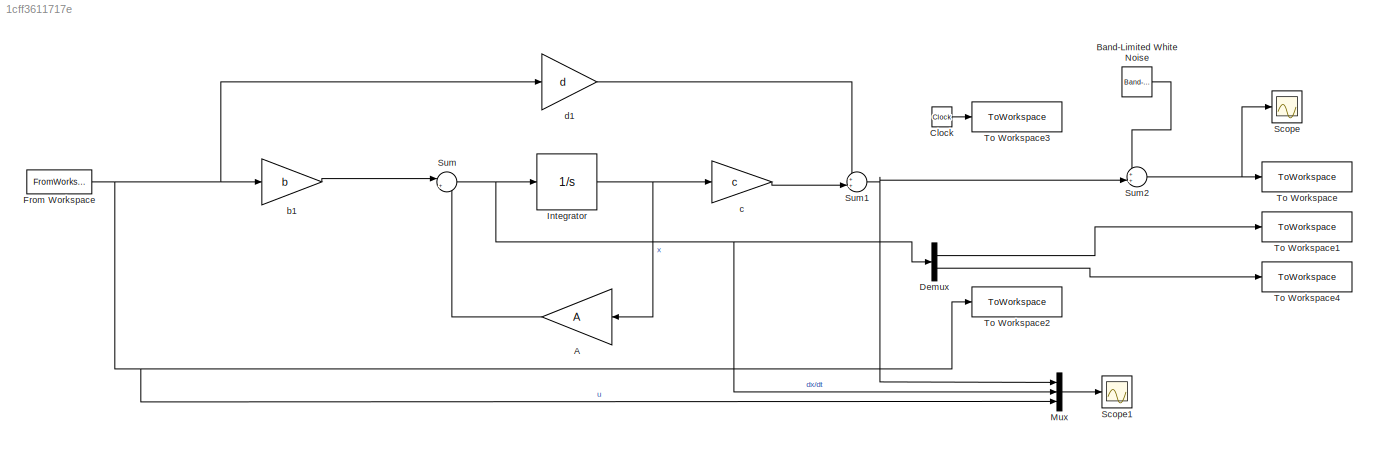
MODEL slx_1cff3611717e
KIND model
CONFIG AbsTol = auto
CONFIG EnableMultiTasking = off
CONFIG FixedStep = 0.0001
CONFIG MaxStep = auto
CONFIG MinStep = auto
CONFIG RelTol = 1e-3
CONFIG SampleTimeConstraint = Unconstrained
CONFIG SolverName = ode4
CONFIG StartTime = 0.0
CONFIG StopTime = 1
BLOCK [Gain] A
  Gain = A
  Multiplication = Matrix(K*u) (u vector)
  NameLocation = top
BLOCK [Reference] Band-Limited White Noise  REF=simulink/Sources/Band-Limited
White Noise
  SourceBlock = simulink/Sources/Band-Limited\nWhite Noise
  SourceType = Band-Limited White Noise.
BLOCK [Clock] Clock
BLOCK [Demux] Demux
  Outputs = 2
BLOCK [FromWorkspace] From Workspace
  NameLocation = top
  VariableName = [t_chirp, chirp_signal]
BLOCK [Integrator] Integrator
  InitialCondition = x0
BLOCK [Mux] Mux
  DisplayOption = bar
  Inputs = 3
BLOCK [Scope] Scope
  ActiveDisplayYMaximum = 0.24899146493402396
  ActiveDisplayYMinimum = -0.001409054570019992
  Floating = off
  GraphicalSettings = {"Style":{"BackgroundColor":[0.12941176470588237,0.12941176470588237,0.12941176470588237],"AxesColor":[0.07058823529411765,0.07058823529411765,0.07058823529411765],"LabelsColor":[0.8509803921568627,0.8509803921568627,0.8509803921568627],"PreserveColors":false,"Visible":[true],"LineStyle":["-"],"LineWidth":[1.5],"BarWidth":[0.9],"LineColor":["auto"],"LineFaceAlpha":[1],"LineEdgeAlpha":[1],"Marker":...<+1999ch>
  MultipleDisplayCache = [{"MaxYLimMag":0.17442001368157134,"MaxYLimReal":0.24899146493402396,"MinYLimMag":0,"MinYLimReal":-0.001409054570019992,"PlotAsMagnitudePhase":false,"ShowGrid":true,"ShowLegend":false,"Title":"%<SignalLabel>","YLabel":""}]
  NumInputPorts = 1
  ScopeFrameLocation = window
  WasSavedAsWebScope = on
  WindowPosition = [1.000000,49.000000,1920.000000,1009.000000,]
BLOCK [Scope] Scope1
  ActiveDisplayYMaximum = 5.5321271901786586
  ActiveDisplayYMinimum = -7.3412624573538627
  DataLoggingVariableName = ScopeData1
  Floating = off
  GraphicalSettings = {"AxesScalingProperties":{"AlignXAxis":"Center","AlignYAxis":"Center","AutoScaleXAxisLimits":false,"AxesScaling":"Manual","AxesScalingNumUpdates":10,"ExpandOnly":true,"ScaleAxesLimitsAtStop":false,"XAxisDataRange":100,"YAxisDataRange":80},"DisplayProperties":{"ColorOrder":["auto","auto","auto","auto","auto","auto","auto","auto","auto","auto","auto","auto","auto","auto","auto","auto","auto","auto",...<+2220ch>
  MultipleDisplayCache = [{"MaxYLimMag":5.0779738759873121,"MaxYLimReal":5.5321271901786586,"MinYLimMag":0,"MinYLimReal":-7.3412624573538627,"PlotAsMagnitudePhase":false,"ShowGrid":true,"ShowLegend":false,"Title":"%<SignalLabel>","YLabel":""}]
  NumInputPorts = 1
  ScopeFrameLocation = window
  WasSavedAsWebScope = on
  WindowPosition = [680.000000,330.000000,560.000000,420.000000,]
BLOCK [Sum] Sum
  Inputs = |++
BLOCK [Sum] Sum1
  Inputs = ++|
BLOCK [Sum] Sum2
  Inputs = ++|
BLOCK [ToWorkspace] To Workspace
  FixptAsFi = on
  MaxDataPoints = inf
  SampleTime = Ts
  VariableName = x
BLOCK [ToWorkspace] To Workspace1
  FixptAsFi = on
  MaxDataPoints = inf
  SampleTime = Ts
  VariableName = dx
BLOCK [ToWorkspace] To Workspace2
  FixptAsFi = on
  MaxDataPoints = inf
  SampleTime = Ts
  VariableName = i
BLOCK [ToWorkspace] To Workspace3
  FixptAsFi = on
  MaxDataPoints = inf
  SampleTime = Ts
  VariableName = t
BLOCK [ToWorkspace] To Workspace4
  FixptAsFi = on
  MaxDataPoints = inf
  SampleTime = Ts
  VariableName = ddx
BLOCK [Gain] b1
  Gain = b
  Multiplication = Matrix(K*u) (u vector)
BLOCK [Gain] c
  Gain = c
  Multiplication = Matrix(K*u) (u vector)
BLOCK [Gain] d1
  Gain = d
  Multiplication = Matrix(K*u) (u vector)
LINE A:1 -> Sum:2
LINE Band-Limited White Noise:1 -> Sum2:1
LINE Clock:1 -> To Workspace3:1
LINE Demux:1 -> To Workspace1:1
LINE Demux:2 -> To Workspace4:1
NET From Workspace:1 -> Mux:3, To Workspace2:1, b1:1, d1:1
NET Integrator:1 -> A:1, c:1
LINE Mux:1 -> Scope1:1
NET Sum1:1 -> Mux:1, Sum2:2
NET Sum2:1 -> Scope:1, To Workspace:1
NET Sum:1 -> Demux:1, Integrator:1, Mux:2
LINE b1:1 -> Sum:1
LINE c:1 -> Sum1:2
LINE d1:1 -> Sum1:1
note: NET lines group one-source signal fan-out (src -> all destinations, sorted); 1:1 wires keep LINE
